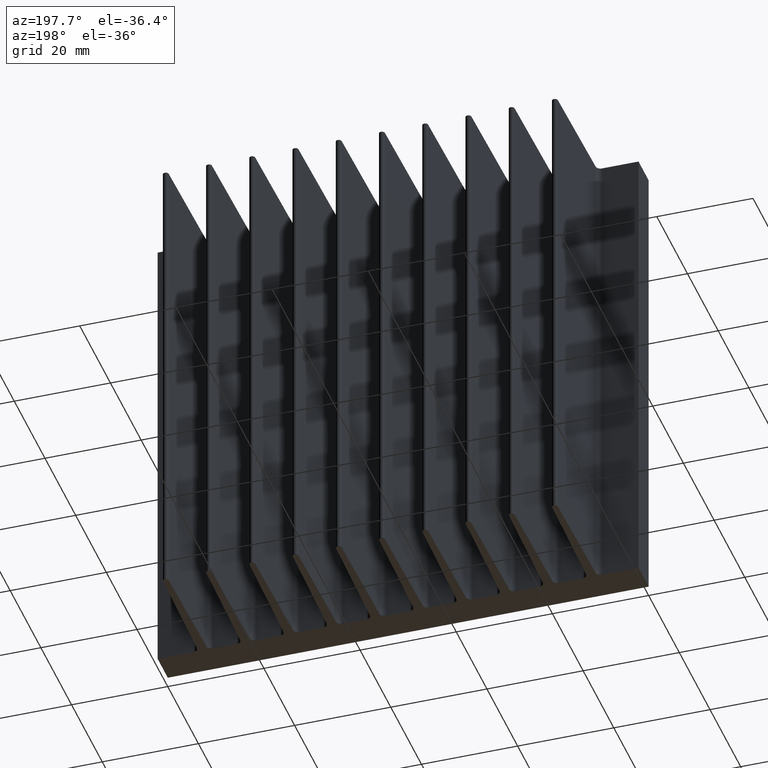
[diagram: clean part render]
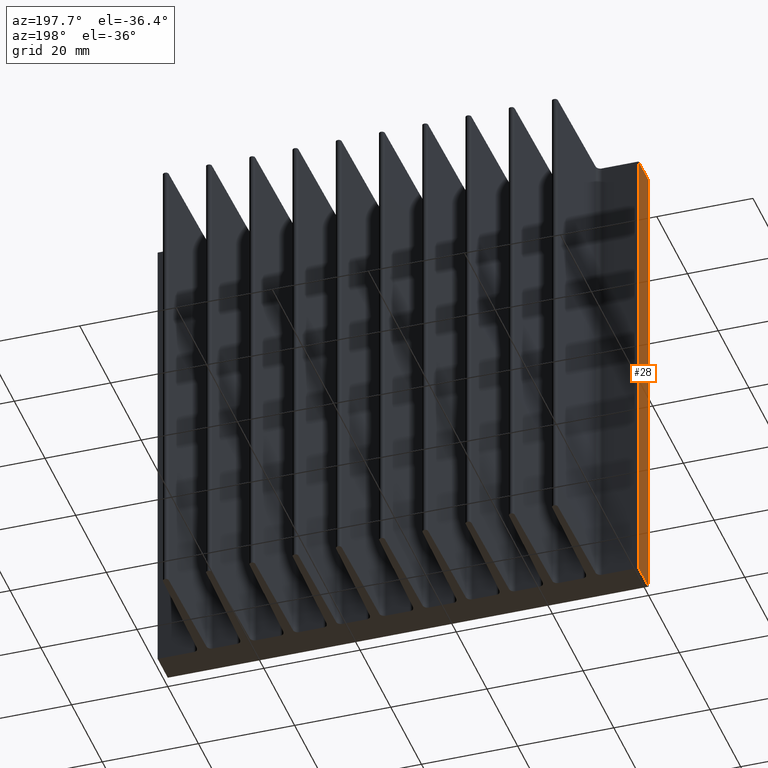
[diagram: same view with one face highlighted and labeled with its STEP entity id]
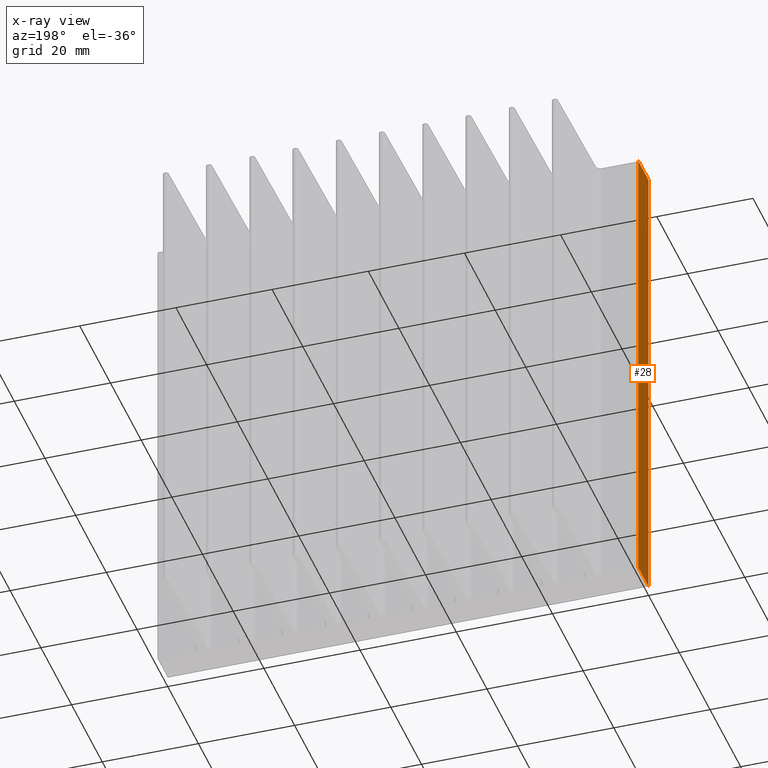
[diagram: x-ray of the same camera — body ghosted, the highlighted face saturated]
A machine part, auxiliary view. The second image highlights one B-rep face of the part: STEP entity #28.
The next image is the same camera in x-ray: the body ghosted, the highlighted face saturated — about 0% of this face is hidden behind the body in this view.
In plain terms, the highlighted planar face has unit normal (1, 0, -0).
Its self-contained STEP definition (entity closure, byte-faithful):
#3 = CARTESIAN_POINT ( 'NONE',  ( -0.009247140352316119902, -3.561464751583587329E-08, 50.00000000000000000 ) ) ;
#6 = DIRECTION ( 'NONE',  ( -0.0000000000000000000, -0.0000000000000000000, -1.000000000000000000 ) ) ;
#28 = ADVANCED_FACE ( 'NONE', ( #1539 ), #1526, .F. ) ;
#40 = VERTEX_POINT ( 'NONE', #220 ) ;
#43 = VECTOR ( 'NONE', #6, 1000.000000000000000 ) ;
#161 = VERTEX_POINT ( 'NONE', #1129 ) ;
#220 = CARTESIAN_POINT ( 'NONE',  ( -0.009247140352316128575, 6.600116005069784464, -50.00000000000000000 ) ) ;
#410 = VECTOR ( 'NONE', #909, 1000.000000000000000 ) ;
#414 = VERTEX_POINT ( 'NONE', #1901 ) ;
#440 = CARTESIAN_POINT ( 'NONE',  ( -0.009247140352316128575, 6.600116005069784464, 50.00000000000000000 ) ) ;
#544 = EDGE_CURVE ( 'NONE', #40, #2072, #1441, .T. ) ;
#682 = ORIENTED_EDGE ( 'NONE', *, *, #1257, .F. ) ;
#817 = EDGE_LOOP ( 'NONE', ( #856, #682, #2166, #1926 ) ) ;
#842 = AXIS2_PLACEMENT_3D ( 'NONE', #440, #1418, #1610 ) ;
#856 = ORIENTED_EDGE ( 'NONE', *, *, #544, .T. ) ;
#909 = DIRECTION ( 'NONE',  ( 1.283360689468215926E-18, -1.000000000000000000, 0.0000000000000000000 ) ) ;
#961 = DIRECTION ( 'NONE',  ( 1.283360689468215926E-18, -1.000000000000000000, 0.0000000000000000000 ) ) ;
#963 = CARTESIAN_POINT ( 'NONE',  ( -0.009247140352316128575, 6.600116005069784464, 50.00000000000000000 ) ) ;
#1129 = CARTESIAN_POINT ( 'NONE',  ( -0.009247140352316119902, -3.561464751583587329E-08, 50.00000000000000000 ) ) ;
#1228 = LINE ( 'NONE', #1661, #1356 ) ;
#1257 = EDGE_CURVE ( 'NONE', #161, #2072, #1580, .T. ) ;
#1333 = LINE ( 'NONE', #963, #410 ) ;
#1356 = VECTOR ( 'NONE', #1445, 1000.000000000000000 ) ;
#1374 = CARTESIAN_POINT ( 'NONE',  ( -0.009247140352316128575, 6.600116005069784464, -50.00000000000000000 ) ) ;
#1417 = VECTOR ( 'NONE', #961, 1000.000000000000000 ) ;
#1418 = DIRECTION ( 'NONE',  ( 1.000000000000000000, 1.283360689468216119E-18, -0.0000000000000000000 ) ) ;
#1441 = LINE ( 'NONE', #1374, #1417 ) ;
#1445 = DIRECTION ( 'NONE',  ( -0.0000000000000000000, -0.0000000000000000000, -1.000000000000000000 ) ) ;
#1526 = PLANE ( 'NONE',  #842 ) ;
#1539 = FACE_OUTER_BOUND ( 'NONE', #817, .T. ) ;
#1580 = LINE ( 'NONE', #3, #43 ) ;
#1610 = DIRECTION ( 'NONE',  ( -1.283360689468216119E-18, 1.000000000000000000, 0.0000000000000000000 ) ) ;
#1621 = CARTESIAN_POINT ( 'NONE',  ( -0.009247140352316119902, -3.561464751583587329E-08, -50.00000000000000000 ) ) ;
#1661 = CARTESIAN_POINT ( 'NONE',  ( -0.009247140352316128575, 6.600116005069784464, 50.00000000000000000 ) ) ;
#1671 = EDGE_CURVE ( 'NONE', #414, #161, #1333, .T. ) ;
#1901 = CARTESIAN_POINT ( 'NONE',  ( -0.009247140352316128575, 6.600116005069784464, 50.00000000000000000 ) ) ;
#1926 = ORIENTED_EDGE ( 'NONE', *, *, #2067, .T. ) ;
#2067 = EDGE_CURVE ( 'NONE', #414, #40, #1228, .T. ) ;
#2072 = VERTEX_POINT ( 'NONE', #1621 ) ;
#2166 = ORIENTED_EDGE ( 'NONE', *, *, #1671, .F. ) ;